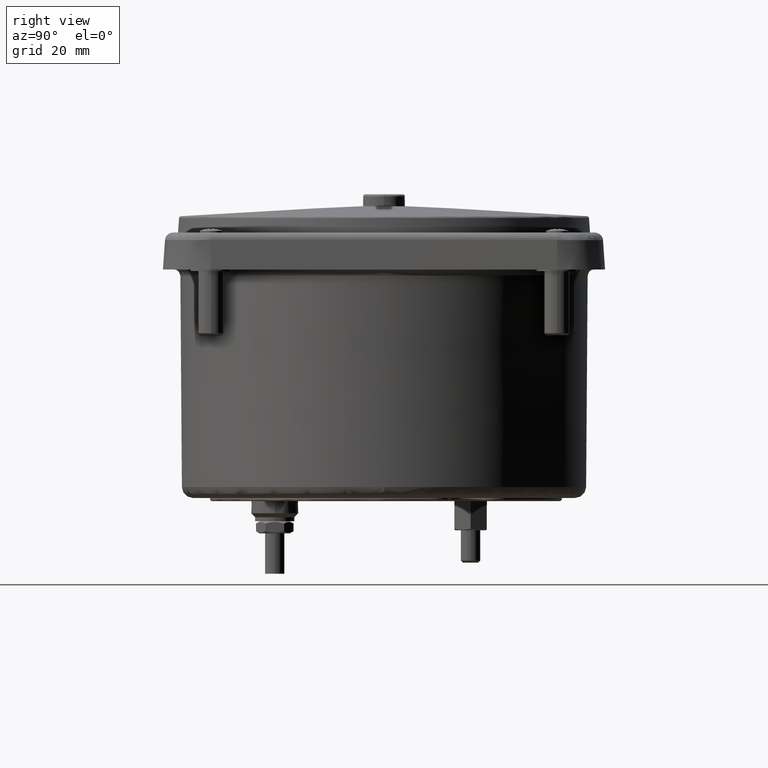
[diagram: clean part render]
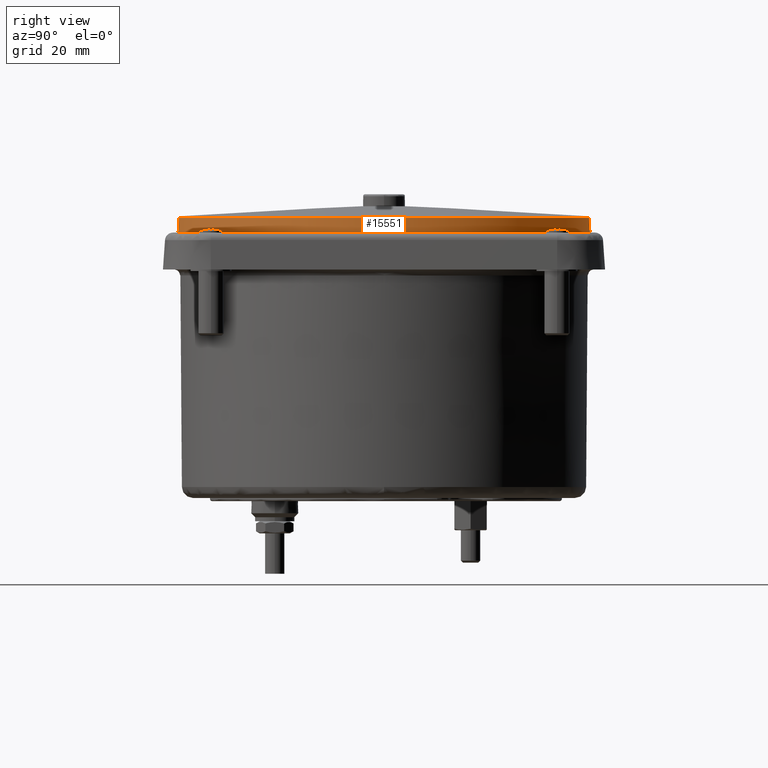
[diagram: same view with one face highlighted and labeled with its STEP entity id]
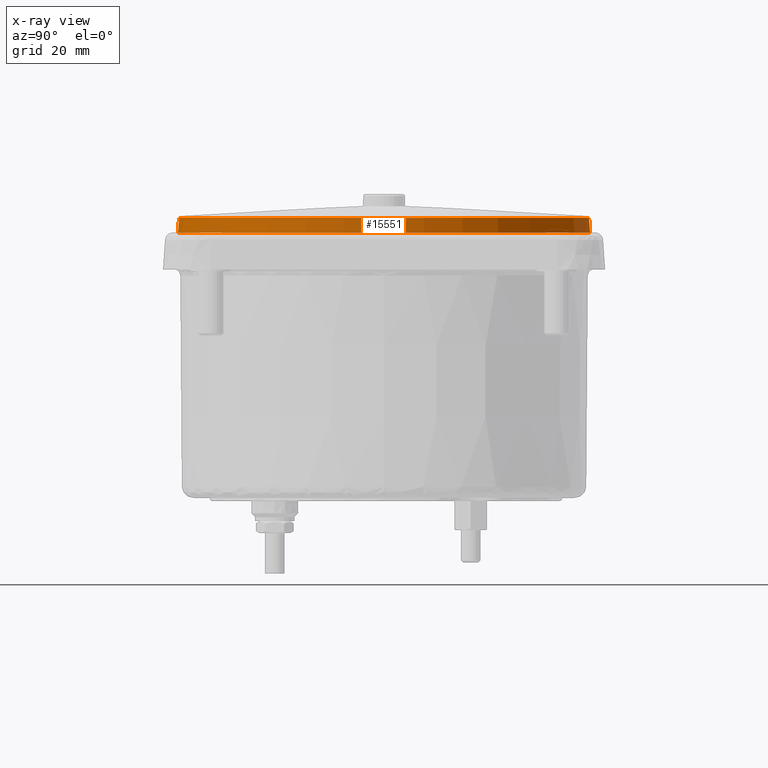
[diagram: x-ray of the same camera — body ghosted, the highlighted face saturated]
A machine part, right view. The second image highlights one B-rep face of the part: STEP entity #15551.
The next image is the same camera in x-ray: the body ghosted, the highlighted face saturated — about 0% of this face is hidden behind the body in this view.
In plain terms, the highlighted conical surface has half-angle 4 deg.
Its self-contained STEP definition (entity closure, byte-faithful):
#661 = ORIENTED_EDGE ( 'NONE', *, *, #1524, .F. ) ;
#1467 = CIRCLE ( 'NONE', #8125, 2.006984957256527480 ) ;
#1524 = EDGE_CURVE ( 'NONE', #16730, #8822, #3797, .T. ) ;
#1772 = AXIS2_PLACEMENT_3D ( 'NONE', #6113, #6439, #16395 ) ;
#2031 = CARTESIAN_POINT ( 'NONE',  ( -2.731847993664263613E-15, 2.731847993664263613E-15, 2.430346456692070944 ) ) ;
#2377 = EDGE_LOOP ( 'NONE', ( #16196, #19896, #12869, #9367, #661 ) ) ;
#3178 = CIRCLE ( 'NONE', #1772, 1.997103705112838856 ) ;
#3797 = LINE ( 'NONE', #10472, #12349 ) ;
#4273 = CARTESIAN_POINT ( 'NONE',  ( -2.486668275464363909E-15, -1.997103705112835970, 2.571654945960822669 ) ) ;
#4676 = CARTESIAN_POINT ( 'NONE',  ( -2.486063223280154467E-15, -2.006984957256524815, 2.430346456692070944 ) ) ;
#5019 = EDGE_CURVE ( 'NONE', #8822, #9985, #1467, .T. ) ;
#5057 = CARTESIAN_POINT ( 'NONE',  ( -2.731847993658006763E-15, 1.997103705112841521, 2.571654945960823557 ) ) ;
#5961 = VERTEX_POINT ( 'NONE', #16569 ) ;
#6113 = CARTESIAN_POINT ( 'NONE',  ( -2.731847993665251661E-15, 2.733369335921590502E-15, 2.571654945960823113 ) ) ;
#6439 = DIRECTION ( 'NONE',  ( -1.195140790058710120E-25, 1.836909531000139737E-16, -1.000000000000000000 ) ) ;
#6530 = AXIS2_PLACEMENT_3D ( 'NONE', #2031, #13971, #12118 ) ;
#8105 = VECTOR ( 'NONE', #20972, 39.37007874015748143 ) ;
#8125 = AXIS2_PLACEMENT_3D ( 'NONE', #8805, #18623, #13616 ) ;
#8805 = CARTESIAN_POINT ( 'NONE',  ( -2.731847993664263613E-15, 2.731847993664263613E-15, 2.430346456692074941 ) ) ;
#8822 = VERTEX_POINT ( 'NONE', #13170 ) ;
#9367 = ORIENTED_EDGE ( 'NONE', *, *, #5019, .F. ) ;
#9985 = VERTEX_POINT ( 'NONE', #10288 ) ;
#10288 = CARTESIAN_POINT ( 'NONE',  ( -2.486063223280154467E-15, -2.006984957256524815, 2.430346456692074497 ) ) ;
#10353 = AXIS2_PLACEMENT_3D ( 'NONE', #17356, #12151, #12255 ) ;
#10472 = CARTESIAN_POINT ( 'NONE',  ( -2.731847993664263613E-15, 2.006984957256530588, 2.430346456692071389 ) ) ;
#12118 = DIRECTION ( 'NONE',  ( 0.000000000000000000, 1.000000000000000000, 1.361170139211504745E-16 ) ) ;
#12151 = DIRECTION ( 'NONE',  ( -1.195140790058710120E-25, 1.836909531000139737E-16, -1.000000000000000000 ) ) ;
#12255 = DIRECTION ( 'NONE',  ( 6.506258309890709121E-10, -1.000000000000000000, 8.207429549112704649E-16 ) ) ;
#12349 = VECTOR ( 'NONE', #17104, 39.37007874015748143 ) ;
#12869 = ORIENTED_EDGE ( 'NONE', *, *, #18427, .T. ) ;
#13170 = CARTESIAN_POINT ( 'NONE',  ( -2.731847993664263613E-15, 2.006984957256530144, 2.430346456692074941 ) ) ;
#13173 = EDGE_CURVE ( 'NONE', #5961, #16516, #20132, .T. ) ;
#13616 = DIRECTION ( 'NONE',  ( 0.000000000000000000, 1.000000000000000000, 1.361170139211504745E-16 ) ) ;
#13971 = DIRECTION ( 'NONE',  ( -8.856124801240861388E-26, 1.361170139211503758E-16, -1.000000000000000000 ) ) ;
#15551 = ADVANCED_FACE ( 'NONE', ( #17003 ), #19101, .T. ) ;
#16196 = ORIENTED_EDGE ( 'NONE', *, *, #21120, .T. ) ;
#16395 = DIRECTION ( 'NONE',  ( 6.506258309890709121E-10, -1.000000000000000000, 8.207429549112704649E-16 ) ) ;
#16516 = VERTEX_POINT ( 'NONE', #4273 ) ;
#16569 = CARTESIAN_POINT ( 'NONE',  ( 1.997103705113098204, 1.299370262743358927E-09, 2.571654945960823113 ) ) ;
#16730 = VERTEX_POINT ( 'NONE', #5057 ) ;
#17003 = FACE_OUTER_BOUND ( 'NONE', #2377, .T. ) ;
#17104 = DIRECTION ( 'NONE',  ( -8.834551726382028716E-26, 0.06975647366384811476, -0.9975640502654378183 ) ) ;
#17356 = CARTESIAN_POINT ( 'NONE',  ( -2.731847993665251661E-15, 2.733369335921590502E-15, 2.571654945960823113 ) ) ;
#17782 = LINE ( 'NONE', #4676, #8105 ) ;
#18427 = EDGE_CURVE ( 'NONE', #16516, #9985, #17782, .T. ) ;
#18623 = DIRECTION ( 'NONE',  ( -8.856124801240861388E-26, 1.361170139211503758E-16, -1.000000000000000000 ) ) ;
#19101 = CONICAL_SURFACE ( 'NONE', #6530, 2.006984957256527480, 0.06981316999929983169 ) ;
#19896 = ORIENTED_EDGE ( 'NONE', *, *, #13173, .T. ) ;
#20132 = CIRCLE ( 'NONE', #10353, 1.997103705112838856 ) ;
#20972 = DIRECTION ( 'NONE',  ( 8.542704130878289973E-18, -0.06975647366384783721, -0.9975640502654378183 ) ) ;
#21120 = EDGE_CURVE ( 'NONE', #16730, #5961, #3178, .T. ) ;